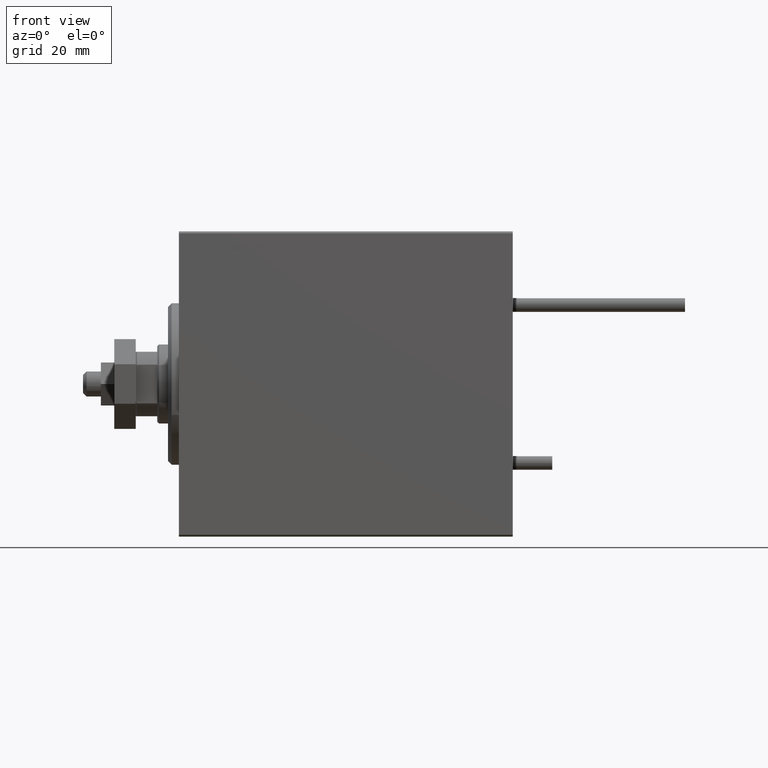
[diagram: clean part render]
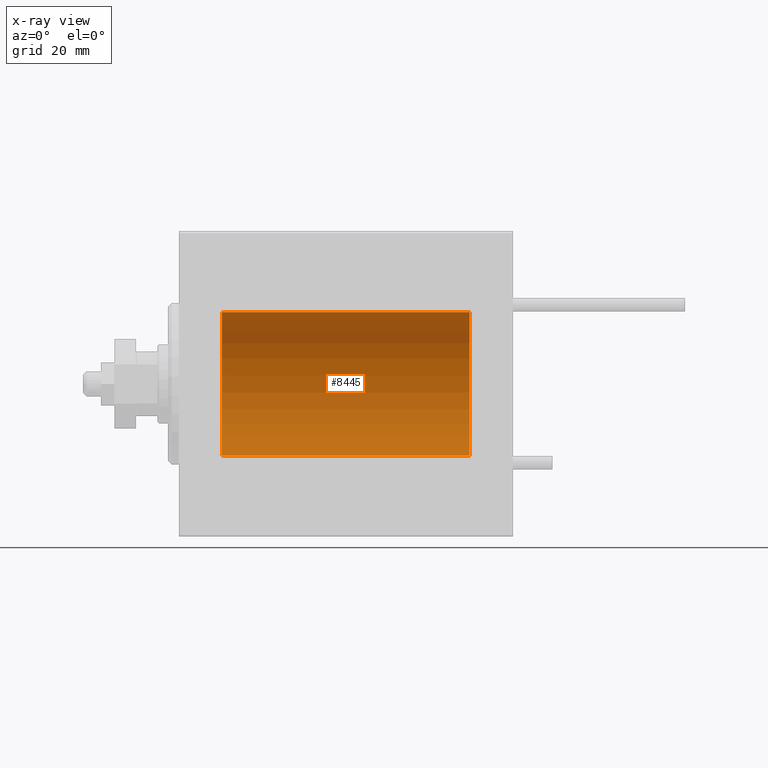
[diagram: x-ray — body ghosted, one internal face saturated and labeled with its STEP entity id]
A machine part, front view, then the same camera in x-ray: the body is ghosted and one INTERNAL B-rep face — a face not visible from any outside direction — is saturated and labeled: STEP entity #8445.
In plain terms, the highlighted cylindrical surface (partial cylindrical patch) has radius 20 mm, axis along (-1, -0, -0).
Its self-contained STEP definition (entity closure, byte-faithful):
#239 = DIRECTION ( 'NONE',  ( -1.000000000000000000, 0.000000000000000000, 0.000000000000000000 ) ) ;
#2452 = VERTEX_POINT ( 'NONE', #45975 ) ;
#3083 = DIRECTION ( 'NONE',  ( 0.000000000000000000, 0.000000000000000000, 1.000000000000000000 ) ) ;
#4112 = FACE_OUTER_BOUND ( 'NONE', #28939, .T. ) ;
#7118 = VECTOR ( 'NONE', #21648, 1000.000000000000000 ) ;
#8445 = ADVANCED_FACE ( 'NONE', ( #4112 ), #46401, .F. ) ;
#10915 = CARTESIAN_POINT ( 'NONE',  ( 11.99999999999999645, 0.000000000000000000, 0.000000000000000000 ) ) ;
#10998 = EDGE_CURVE ( 'NONE', #33644, #2452, #25698, .T. ) ;
#11411 = DIRECTION ( 'NONE',  ( 0.000000000000000000, 0.000000000000000000, 1.000000000000000000 ) ) ;
#11726 = DIRECTION ( 'NONE',  ( -1.000000000000000000, -0.000000000000000000, -0.000000000000000000 ) ) ;
#11979 = CARTESIAN_POINT ( 'NONE',  ( 81.00000000000000000, 0.000000000000000000, 0.000000000000000000 ) ) ;
#12016 = LINE ( 'NONE', #15789, #16568 ) ;
#12276 = ORIENTED_EDGE ( 'NONE', *, *, #47382, .T. ) ;
#13526 = ORIENTED_EDGE ( 'NONE', *, *, #28892, .F. ) ;
#15163 = AXIS2_PLACEMENT_3D ( 'NONE', #10915, #239, #11411 ) ;
#15789 = CARTESIAN_POINT ( 'NONE',  ( 81.00000000000000000, 0.000000000000000000, 20.00000000000000000 ) ) ;
#16049 = AXIS2_PLACEMENT_3D ( 'NONE', #11979, #11726, #19336 ) ;
#16568 = VECTOR ( 'NONE', #43142, 1000.000000000000000 ) ;
#19336 = DIRECTION ( 'NONE',  ( 0.000000000000000000, 0.000000000000000000, 1.000000000000000000 ) ) ;
#19412 = CARTESIAN_POINT ( 'NONE',  ( 81.00000000000000000, 2.449293598294706513E-15, -20.00000000000000000 ) ) ;
#21648 = DIRECTION ( 'NONE',  ( -1.000000000000000000, -0.000000000000000000, -0.000000000000000000 ) ) ;
#22332 = DIRECTION ( 'NONE',  ( -1.000000000000000000, 0.000000000000000000, 0.000000000000000000 ) ) ;
#25644 = CIRCLE ( 'NONE', #15163, 20.00000000000000000 ) ;
#25698 = LINE ( 'NONE', #25950, #7118 ) ;
#25950 = CARTESIAN_POINT ( 'NONE',  ( 81.00000000000000000, 2.449293598294706513E-15, -20.00000000000000000 ) ) ;
#28457 = ORIENTED_EDGE ( 'NONE', *, *, #10998, .F. ) ;
#28892 = EDGE_CURVE ( 'NONE', #39294, #33644, #44804, .T. ) ;
#28939 = EDGE_LOOP ( 'NONE', ( #28457, #13526, #29453, #12276 ) ) ;
#29453 = ORIENTED_EDGE ( 'NONE', *, *, #40087, .T. ) ;
#33644 = VERTEX_POINT ( 'NONE', #19412 ) ;
#35549 = VERTEX_POINT ( 'NONE', #46848 ) ;
#36707 = AXIS2_PLACEMENT_3D ( 'NONE', #42823, #22332, #3083 ) ;
#39294 = VERTEX_POINT ( 'NONE', #39855 ) ;
#39855 = CARTESIAN_POINT ( 'NONE',  ( 81.00000000000000000, 0.000000000000000000, 20.00000000000000000 ) ) ;
#40087 = EDGE_CURVE ( 'NONE', #39294, #35549, #12016, .T. ) ;
#42823 = CARTESIAN_POINT ( 'NONE',  ( 81.00000000000000000, 0.000000000000000000, 0.000000000000000000 ) ) ;
#43142 = DIRECTION ( 'NONE',  ( -1.000000000000000000, -0.000000000000000000, -0.000000000000000000 ) ) ;
#44804 = CIRCLE ( 'NONE', #36707, 20.00000000000000000 ) ;
#45975 = CARTESIAN_POINT ( 'NONE',  ( 11.99999999999999645, 2.449293598294706513E-15, -20.00000000000000000 ) ) ;
#46401 = CYLINDRICAL_SURFACE ( 'NONE', #16049, 20.00000000000000000 ) ;
#46848 = CARTESIAN_POINT ( 'NONE',  ( 11.99999999999999645, 0.000000000000000000, 20.00000000000000000 ) ) ;
#47382 = EDGE_CURVE ( 'NONE', #35549, #2452, #25644, .T. ) ;